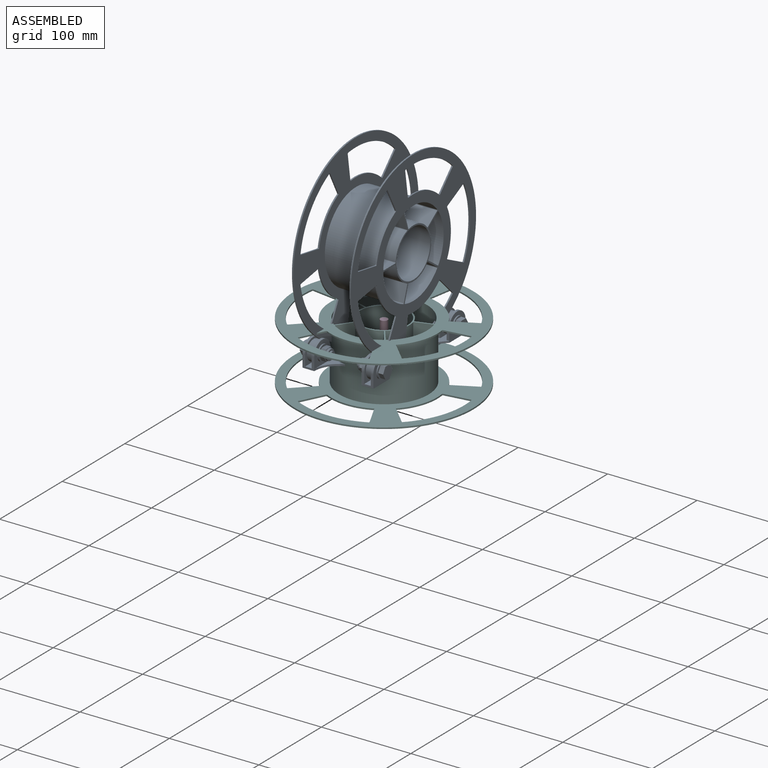
[diagram: assembled view]
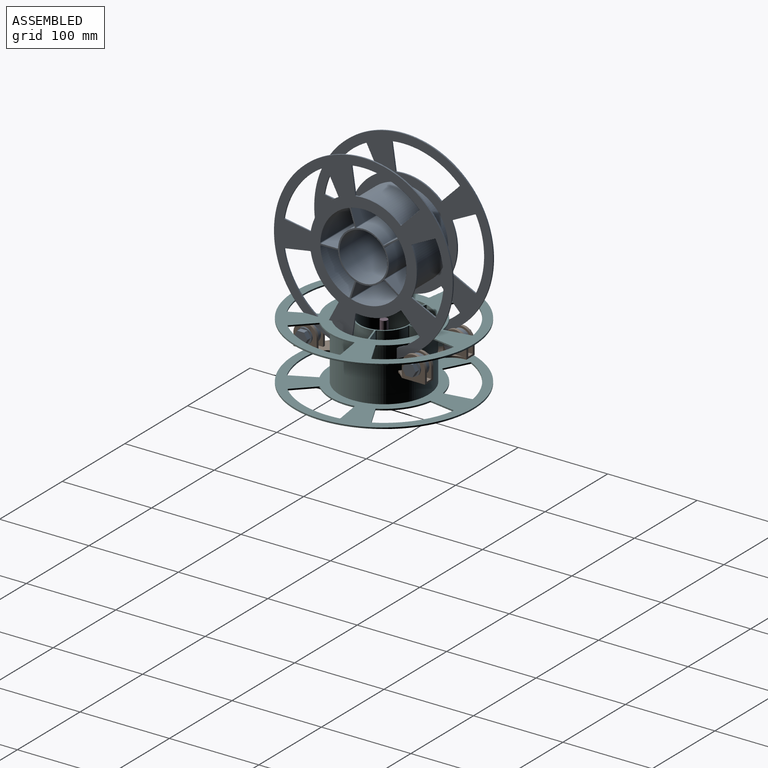
[diagram: assembled view, second angle]
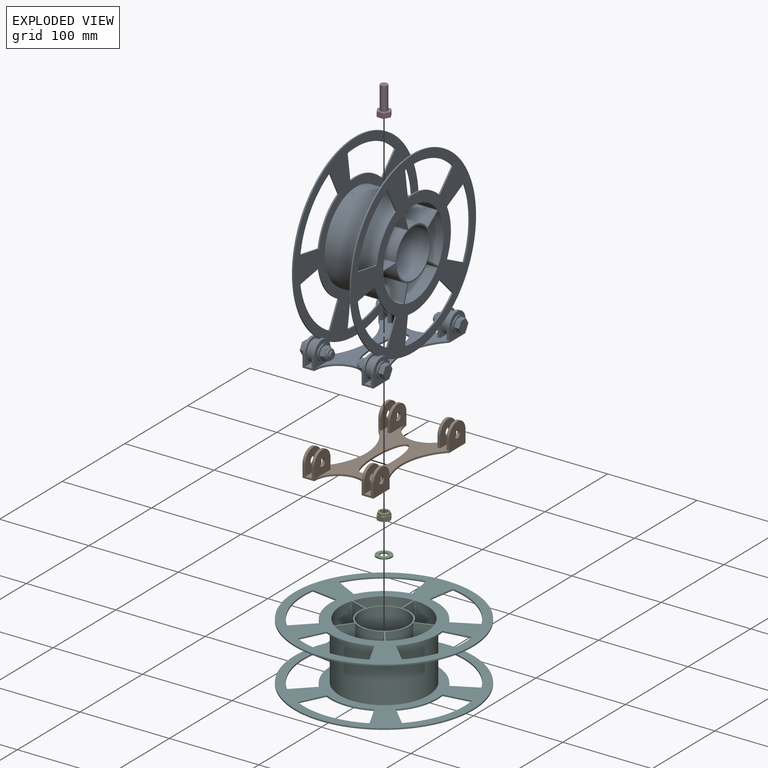
[diagram: exploded view]
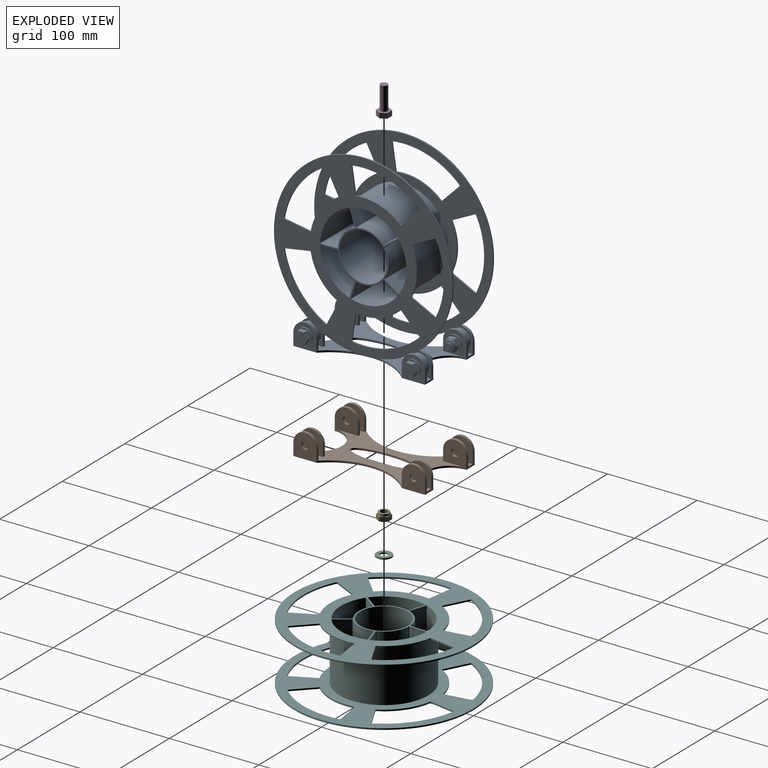
[diagram: exploded view, second angle]
FCSTD DOCUMENT  (FreeCAD 1.0R39285 (Git))
Label: FilamentSpoolRoller
License: All rights reserved
LicenseURL: https://en.wikipedia.org/wiki/All_rights_reserved
objects: App::Link×22, PartDesign::CoordinateSystem×21, Sketcher::SketchObject×13, PartDesign::Pad×5, PartDesign::Body×5, App::DocumentObjectGroup×3, PartDesign::Pocket×3, PartDesign::Groove×2, PartDesign::Revolution×2, Spreadsheet::Sheet×1, App::FeaturePython×1, App::Part×1, PartDesign::PolarPattern×1
note: 90 computed .brp shape members not serialized (recipe doc carries the construction recipe); baked Part::Feature solids carry a one-line shape summary decoded from their .brp
EXTERNAL_REF file=608ZZ_Ball_Bearing.fcstd obj=Center
EXTERNAL_REF file=608ZZ_Ball_Bearing.fcstd obj=Body

FEATURE [Spreadsheet::Sheet] Spreadsheet
  cells = A2=' Spool outer diameter; B2(SpoolOuterDiameter)==200 mm; A3='Spool outer width; B3(SpoolOuterWidth)==65.9 mm; A4='Spool side thickness; B4(SpoolSideThickness)==1.6 mm; A5='Spool center hole diameter; B5(SpoolCenterHoleDiameter)==53.5 mm; A6='Spool inner diameter; B6(SpoolInnerDiameter)==96.3 + 3.2; A7='Spool diameter tolerance; B7(SpoolDiameterTolerance)==5 mm; C7='Vertical distance between the spool and the roller stand; A8='Spool number of cutouts; B8(SpoolNumberOfCutouts)=5; A9='Spool wide parts; B9(SpoolWideParts)==10 mm; A11='Bearing outer diameter; B11(BearingOuterDiameter)==22 mm; A12='Bearing hole diameter; B12(BearingHoleDiameter)==8 mm; A13='Bearing width; B13(BearingWidth)==7 mm; A14='Bearing width tolerance; B14(BearingWidthTolerance)==0.1 mm; A15='Bearing diameter tolerance; B15(BearingDiameterTolerance)==1 mm; A17='Bolt diameter; B17(BoltDiameter)==8 mm; A18='Bolt length; C18(BoltLength)==WasherThickness * 2 + BearingMountThickness * 2 + BearingWidthTolerance * 2 + BearingWidth + LockNutTotalHeight + BoltExtraLength; D18='no edit; E18='(calculated); F18='WasherThickness * 2 + BearingMountThickness * 2 + BearingWidthTolerance * 2 + BearingWidth + BoltExtraLength; A19='Bolt extra length; B19(BoltExtraLength)==2 mm; A20='Bolt diameter tolerance; B20(BoltDiameterTolerance)==0.2 mm; A21='Bolt head size; B21(BoltHeadSize)==13 mm; A22='Bolt head height; B22(BoltHeadHeight)==5.5 mm; A24='Washer thickness; B24(WasherThickness)==1.5 mm; A25='Washer outer diameter; B25(WasherOuterDiameter)==17 mm; A26='Washer inner diameter; B26(WasherInnerDiameter)==8.4 mm; A28='Nut height; B28(NutHeight)==5.5 mm; A29='Nut size; B29(NutSize)==13 mm; A30='Lock nut total height; B30(LockNutTotalHeight)==7.9 mm; A32='Bearing mount thickness; B32(BearingMountThickness)==3 mm; A33='Bearing mount diameter; C33(BearingMountDiameter)==BearingOuterDiameter + BearingMountExtraRadius * 2; D33='no edit; E33='(calculated); F33='BearingOuterDiameter + BearingMountExtraRadius * 2; A34='BearingMountExtraRadius; B34(BearingMountExtraRadius)==2 mm; A36='Roller bottom thickness; B36(RollerBottomThickness)==2 mm; A37='Roller bottom arm width; B37(RollerBottomArmWidth)==10 mm; A38='Roller total width; C38(RollerTotalWidth)==BearingMountThickness * 2 + BearingDiameterTolerance * 2 + BearingWidth + SpoolOuterWidth - SpoolSideThickness; D38='no edit; E38='(calculated); F38='BearingMountThickness * 4 + BearingDiameterTolerance * 4 + BearingWidth * 2 + SpoolOuterWidth - SpoolSideThickness; A39='Roller bottom center hole width; C39(RollerBottomCenterHoleWidth)==RollerBottomArmWidth * 2; D39='no edit; E39='(calculated); F39='RollerBottomArmWidth * 2
FEATURE [PartDesign::CoordinateSystem] LCS_Origin
  AttacherType = Attacher::AttachEngine3D
  AttachmentSupport = -> [X_Axis]
  MapMode = 2
FEATURE [App::DocumentObjectGroup] Constraints
FEATURE [App::FeaturePython] Variables  # WARN: FeaturePython — macro-defined, semantics opaque (R4)
  Type = App::PropertyContainer
FEATURE [App::DocumentObjectGroup] Configurations
FEATURE [Sketcher::SketchObject] Sketch
  ArcFitTolerance = 1e-06
  AttachmentSupport = -> [YZ_Plane001]
  FullyConstrained = true
  MakeInternals = false
  MapMode = 5
  Placement = pos=(0,0,0) rot=(0.57735,0.57735,0.57735;2.0944rad)
  expr: .Constraints.SpoolCenterZ = <<Spreadsheet>>.SpoolOuterDiameter / 2 + <<Spreadsheet>>.SpoolDiameterTolerance + <<Spreadsheet>>.RollerBottomThickness
  expr: Constraints[1] = <<Spreadsheet>>.SpoolOuterDiameter
  expr: Constraints[25] = <<Spreadsheet>>.RollerBottomThickness
  expr: Constraints[26] = <<Spreadsheet>>.BearingMountDiameter
  expr: Constraints[30] = <<Spreadsheet>>.BoltDiameter + <<Spreadsheet>>.BoltDiameterTolerance * 2
  expr: Constraints[5] = Spreadsheet.BearingOuterDiameter
  expr: Constraints[7] = Spreadsheet.BearingOuterDiameter / 2 + Spreadsheet.BearingDiameterTolerance + Spreadsheet.RollerBottomThickness
  sketch-geometry (13):
    g0: Circle [constr] CenterX=0 CenterY=107 CenterZ=0 NormalX=0 NormalY=0 NormalZ=1 AngleXU=0 Radius=100
    g1: Circle [constr] CenterX=-60.597 CenterY=14 CenterZ=0 NormalX=0 NormalY=0 NormalZ=1 AngleXU=0 Radius=11
    g2: Circle [constr] CenterX=60.597 CenterY=14 CenterZ=0 NormalX=0 NormalY=0 NormalZ=1 AngleXU=0 Radius=11
    g3: ArcOfCircle CenterX=-60.597 CenterY=14 CenterZ=0 NormalX=0 NormalY=0 NormalZ=1 AngleXU=0 Radius=13 StartAngle=1e-16 EndAngle=3.14159
    g4: ArcOfCircle CenterX=60.597 CenterY=14 CenterZ=0 NormalX=0 NormalY=0 NormalZ=1 AngleXU=0 Radius=13 StartAngle=1e-16 EndAngle=3.14159
    g5: LineSegment StartX=73.597 StartY=14 StartZ=0 EndX=73.597 EndY=0 EndZ=0
    g6: LineSegment StartX=73.597 StartY=0 StartZ=0 EndX=-73.597 EndY=0 EndZ=0
    g7: LineSegment StartX=-73.597 StartY=0 StartZ=0 EndX=-73.597 EndY=14 EndZ=0
    g8: LineSegment StartX=-47.597 StartY=14 StartZ=0 EndX=-47.597 EndY=2 EndZ=0
    g9: LineSegment StartX=-47.597 StartY=2 StartZ=0 EndX=47.597 EndY=2 EndZ=0
    g10: LineSegment StartX=47.597 StartY=2 StartZ=0 EndX=47.597 EndY=14 EndZ=0
    g11: Circle CenterX=60.597 CenterY=14 CenterZ=0 NormalX=0 NormalY=0 NormalZ=1 AngleXU=0 Radius=4.2
    g12: Circle CenterX=-60.597 CenterY=14 CenterZ=0 NormalX=0 NormalY=0 NormalZ=1 AngleXU=0 Radius=4.2
  constraints (31):
    c: PointOnObject(g0,g-2)
    c: Diameter(g0) = 200
    c: DistanceY(g0) = 107  'SpoolCenterZ'
    c: Symmetric(g2,g1,g-2)
    c: Equal(g2,g1)
    c: Diameter(g2) = 22
    c: Tangent(g2,g0)
    c: DistanceY(g2) = 14
    c: Coincident(g3,g1)
    c: Coincident(g4,g2)
    c: Tangent(g4,g5) = 1.5708
    c: Coincident(g5,g6)
    c: PointOnObject(g6,g-1)
    c: Coincident(g6,g7)
    c: Vertical(g7)
    c: Tangent(g3,g8) = 1.5708
    c: Coincident(g8,g9)
    c: Horizontal(g9)
    c: Coincident(g9,g10)
    c: Tangent(g7,g3) = 1.5708
    c: Tangent(g10,g4) = 1.5708
    c: Vertical(g5)
    c: Vertical(g10)
    c: Vertical(g8)
    c: Symmetric(g6,g5,g-2)
    c: DistanceY(g9) = 2
    c: Diameter(g4) = 26
    c: Coincident(g11,g2)
    c: Coincident(g12,g1)
    c: Equal(g12,g11)
    c: Diameter(g11) = 8.4
FEATURE [PartDesign::Pad] Pad
  Direction = (1,0,0)
  Length = 79.3
  Length2 = 10
  Midplane = true
  Placement = pos=(0,0,0) rot=(1,1,1;2.0944rad)
  Profile = -> Sketch
  ReferenceAxis = -> Sketch [N_Axis]
  Refine = true
  Suppressed = false
  Type = 0
  expr: Length = <<Spreadsheet>>.RollerTotalWidth
FEATURE [Sketcher::SketchObject] Sketch001
  ArcFitTolerance = 1e-06
  AttachmentSupport = -> [Pad]
  ExternalGeometry = -> [Pad]
  FullyConstrained = true
  MakeInternals = false
  MapMode = 5
  Placement = pos=(-1.63e-14,-73.597,8.2e-15) rot=(0.57735,0.57735,-0.57735;2.0944rad)
  expr: Constraints[11] = <<Spreadsheet>>.RollerBottomThickness
  expr: Constraints[31] = <<Spreadsheet>>.BearingMountThickness
  expr: Constraints[34] = <<Spreadsheet>>.BearingWidth + Spreadsheet.BearingWidthTolerance * 2
  expr: Constraints[35] = Spreadsheet.BearingMountThickness
  sketch-geometry (13):
    g0: LineSegment StartX=-2 StartY=-26.45 StartZ=0 EndX=-2 EndY=26.45 EndZ=0
    g1: LineSegment StartX=-2 StartY=26.45 StartZ=0 EndX=-27 EndY=26.45 EndZ=0
    g2: LineSegment StartX=-27 StartY=26.45 StartZ=0 EndX=-27 EndY=-26.45 EndZ=0
    g3: LineSegment StartX=-27 StartY=-26.45 StartZ=0 EndX=-2 EndY=-26.45 EndZ=0
    g4: GeomPoint [constr] X=-14.5 Y=0 Z=0
    g5: LineSegment StartX=-27 StartY=36.65 StartZ=0 EndX=-27 EndY=29.45 EndZ=0
    g6: LineSegment StartX=-27 StartY=29.45 StartZ=0 EndX=-2 EndY=29.45 EndZ=0
    g7: LineSegment StartX=-2 StartY=29.45 StartZ=0 EndX=-2 EndY=36.65 EndZ=0
    g8: LineSegment StartX=-2 StartY=36.65 StartZ=0 EndX=-27 EndY=36.65 EndZ=0
    g9: LineSegment StartX=-27 StartY=-29.45 StartZ=0 EndX=-27 EndY=-36.65 EndZ=0
    g10: LineSegment StartX=-27 StartY=-36.65 StartZ=0 EndX=-2 EndY=-36.65 EndZ=0
    g11: LineSegment StartX=-2 StartY=-36.65 StartZ=0 EndX=-2 EndY=-29.45 EndZ=0
    g12: LineSegment StartX=-2 StartY=-29.45 StartZ=0 EndX=-27 EndY=-29.45 EndZ=0
  constraints (36):
    c: Coincident(g0,g1)
    c: Coincident(g1,g2)
    c: Coincident(g2,g3)
    c: Coincident(g3,g0)
    c: Vertical(g0)
    c: Vertical(g2)
    c: Horizontal(g1)
    c: Horizontal(g3)
    c: Symmetric(g2,g0,g4)
    c: PointOnObject(g4,g-1)
    c: Vertical(g1,g-3)
    c: DistanceX(g0,g-1) = 2
    c: Coincident(g5,g6)
    c: Coincident(g6,g7)
    c: Coincident(g7,g8)
    c: Coincident(g8,g5)
    c: Vertical(g5)
    c: Vertical(g7)
    c: Horizontal(g6)
    c: Horizontal(g8)
    c: Coincident(g9,g10)
    c: Coincident(g10,g11)
    c: Coincident(g11,g12)
    c: Coincident(g12,g9)
    c: Vertical(g9)
    c: Vertical(g11)
    c: Horizontal(g10)
    c: Horizontal(g12)
    c: Vertical(g6,g0)
    c: Vertical(g0,g11)
    c: Vertical(g9,g2)
    c: DistanceY(g5,g-3) = 3
    c: Equal(g5,g9)
    c: Symmetric(g9,g5,g-1)
    c: DistanceY(g7,g7) = 7.2
    c: DistanceY(g1,g5) = 3
FEATURE [PartDesign::Pocket] Pocket
  BaseFeature = -> Pad
  Direction = (0,1,0)
  Length = 5
  Length2 = 5
  Placement = pos=(0,0,0) rot=(1,1,1;2.0944rad)
  Profile = -> Sketch001
  ReferenceAxis = -> Sketch001 [N_Axis]
  Refine = true
  Suppressed = false
  Type = 1
FEATURE [Sketcher::SketchObject] Sketch002
  ArcFitTolerance = 1e-06
  AttachmentSupport = -> [Pocket]
  ExternalGeometry = -> [Pocket]
  FullyConstrained = true
  MakeInternals = false
  MapMode = 5
  Placement = pos=(-2e-16,8e-16,2) rot=(0,0,-1;1.5708rad)
  expr: Constraints[23] = Spreadsheet.RollerBottomArmWidth
  expr: Constraints[25] = <<Spreadsheet>>.RollerBottomArmWidth
  expr: Constraints[27] = Spreadsheet.RollerBottomCenterHoleWidth
  sketch-geometry (13):
    g0: LineSegment StartX=-73.597 StartY=26.45 StartZ=0 EndX=-73.597 EndY=-26.45 EndZ=0
    g1: LineSegment StartX=-47.597 StartY=-39.65 StartZ=0 EndX=47.597 EndY=-39.65 EndZ=0
    g2: LineSegment StartX=73.597 StartY=-26.45 StartZ=0 EndX=73.597 EndY=26.45 EndZ=0
    g3: LineSegment StartX=47.597 StartY=39.65 StartZ=0 EndX=-47.597 EndY=39.65 EndZ=0
    g4: ArcOfCircle CenterX=-73.597 CenterY=-3.7e-15 CenterZ=0 NormalX=0 NormalY=0 NormalZ=1 AngleXU=0 Radius=26.45 StartAngle=4.71239 EndAngle=7.85398
    g5: ArcOfCircle CenterX=3.33e-14 CenterY=87.4707 CenterZ=0 NormalX=0 NormalY=0 NormalZ=1 AngleXU=0 Radius=67.4707 StartAngle=3.92934 EndAngle=5.49544
    g6: ArcOfCircle CenterX=73.597 CenterY=-3.52e-14 CenterZ=0 NormalX=0 NormalY=0 NormalZ=1 AngleXU=0 Radius=26.45 StartAngle=1.5708 EndAngle=4.71239
    g7: ArcOfCircle CenterX=-1.81e-14 CenterY=-87.4707 CenterZ=0 NormalX=0 NormalY=0 NormalZ=1 AngleXU=0 Radius=67.4707 StartAngle=0.787743 EndAngle=2.35385
    g8: Ellipse CenterX=0 CenterY=0 CenterZ=0 NormalX=0 NormalY=0 NormalZ=1 MajorRadius=37.147 MinorRadius=10 AngleXU=0
    g9: LineSegment [constr] StartX=37.147 StartY=0 StartZ=0 EndX=-37.147 EndY=0 EndZ=0
    g10: LineSegment [constr] StartX=0 StartY=10 StartZ=0 EndX=0 EndY=-10 EndZ=0
    g11: GeomPoint [constr] X=35.7757 Y=0 Z=0
    g12: GeomPoint [constr] X=-35.7757 Y=0 Z=0
  constraints (25):
    c: Coincident(g0,g-3)
    c: Coincident(g0,g-3)
    c: Coincident(g1,g-6)
    c: Coincident(g1,g-6)
    c: Coincident(g2,g-5)
    c: Coincident(g2,g-5)
    c: Coincident(g3,g-4)
    c: Coincident(g3,g-4)
    c: Coincident(g4,g0)
    c: Coincident(g4,g0)
    c: Coincident(g5,g3)
    c: Coincident(g5,g3)
    c: Coincident(g6,g2)
    c: Coincident(g6,g2)
    c: Coincident(g7,g1)
    c: Coincident(g7,g1)
    c: Equal(g5,g7)
    c: Equal(g6,g4)
    c: InternalAlignment(g9-g12 -> g8) x4
    c: Coincident(g8,g-1)
    c: Distance(g10,g5) = 10
    c: PointOnObject(g9,g-1)
    c: Distance(g9,g4) = 10
    c: Perpendicular(g4,g0)
    c: DistanceY(g10,g10) = 20
FEATURE [PartDesign::Pocket] Pocket001
  BaseFeature = -> Pocket
  Direction = (0,0,-1)
  Length = 5
  Length2 = 5
  Placement = pos=(0,0,0) rot=(1,1,1;2.0944rad)
  Profile = -> Sketch002
  ReferenceAxis = -> Sketch002 [N_Axis]
  Refine = true
  Suppressed = false
  Type = 1
FEATURE [PartDesign::CoordinateSystem] BottomCenter
  AttacherType = Attacher::AttachEngine3D
  AttachmentSupport = -> [Pocket001]
  MapMode = 45
  Placement = pos=(2.51276e-11,6.43291e-10,0) rot=(0,0,1;0rad)
FEATURE [PartDesign::CoordinateSystem] Bearing1
  AttacherType = Attacher::AttachEngine3D
  AttachmentSupport = -> [Pocket001]
  MapMode = 45
  Placement = pos=(-33.05,60.597,14) rot=(-0.577349,-0.577349,-0.577352;2.09439rad)
FEATURE [PartDesign::CoordinateSystem] Bearing2
  AttacherType = Attacher::AttachEngine3D
  AttachmentSupport = -> [Pocket001]
  MapMode = 45
  Placement = pos=(33.05,60.597,14) rot=(0.57735,0.57735,0.57735;4.18879rad)
FEATURE [PartDesign::CoordinateSystem] Bearing3
  AttacherType = Attacher::AttachEngine3D
  AttachmentSupport = -> [Pocket001]
  MapMode = 45
  Placement = pos=(-33.05,-60.597,14) rot=(0.57735,0.57735,0.57735;4.18879rad)
FEATURE [PartDesign::CoordinateSystem] Bearing4
  AttacherType = Attacher::AttachEngine3D
  AttachmentSupport = -> [Pocket001]
  MapMode = 45
  Placement = pos=(33.05,-60.597,14) rot=(0.57735,0.57735,0.57735;4.18879rad)
FEATURE [App::Link] Roller  label="Roller001"
  AttachedBy = #BottomCenter
  AttachedTo = Parent Assembly#LCS_Origin
  LinkPlacement = pos=(-2.51276e-11,-6.43291e-10,0) rot=(0,0,1;0rad)
  LinkedObject = -> Body
  Placement = pos=(-2.51276e-11,-6.43291e-10,0) rot=(0,0,1;0rad)
  SolverId = Asm4EE
  expr: Placement = LCS_Origin.Placement * AttachmentOffset * BottomCenter.Placement ^ -1
FEATURE [App::Link] _08ZZ_Ball_Bearing  label="608ZZ-Ball_Bearing"
  AttachedBy = #Center
  AttachedTo = Roller#Bearing1
  AttachmentOffset = pos=(0,0,0) rot=(1,0,0;1.5708rad)
  LinkPlacement = pos=(-33.05,60.597,14) rot=(2e-06,-1,-2e-06;1.5708rad)
  LinkedObject = -> <external 608ZZ_Ball_Bearing.fcstd>#Body
  Placement = pos=(-33.05,60.597,14) rot=(2e-06,-1,-2e-06;1.5708rad)
  SolverId = Asm4EE
  expr: Placement = Roller.Placement * Bearing1.Placement * AttachmentOffset * _08ZZ_Ball_Bearing#Center.Placement ^ -1
FEATURE [App::Link] _08ZZ_Ball_Bearing001  label="608ZZ-Ball_Bearing001"
  AttachedBy = #Center
  AttachedTo = Roller#Bearing2
  AttachmentOffset = pos=(0,0,0) rot=(1,0,0;1.5708rad)
  LinkPlacement = pos=(33.05,60.597,14) rot=(0,1,0;4.71239rad)
  LinkedObject = -> <external 608ZZ_Ball_Bearing.fcstd>#Body
  Placement = pos=(33.05,60.597,14) rot=(0,1,0;4.71239rad)
  SolverId = Asm4EE
  expr: Placement = Roller.Placement * Bearing2.Placement * AttachmentOffset * _08ZZ_Ball_Bearing#Center.Placement ^ -1
FEATURE [App::Link] _08ZZ_Ball_Bearing002  label="608ZZ-Ball_Bearing002"
  AttachedBy = #Center
  AttachedTo = Roller#Bearing3
  AttachmentOffset = pos=(0,0,0) rot=(1,0,0;1.5708rad)
  LinkPlacement = pos=(-33.05,-60.597,14) rot=(0,1,0;4.71239rad)
  LinkedObject = -> <external 608ZZ_Ball_Bearing.fcstd>#Body
  Placement = pos=(-33.05,-60.597,14) rot=(0,1,0;4.71239rad)
  SolverId = Asm4EE
  expr: Placement = Roller.Placement * Bearing3.Placement * AttachmentOffset * _08ZZ_Ball_Bearing#Center.Placement ^ -1
FEATURE [App::Link] _08ZZ_Ball_Bearing003  label="608ZZ-Ball_Bearing003"
  AttachedBy = #Center
  AttachedTo = Roller#Bearing4
  AttachmentOffset = pos=(0,0,0) rot=(1,0,0;1.5708rad)
  LinkPlacement = pos=(33.05,-60.597,14) rot=(0,1,0;4.71239rad)
  LinkedObject = -> <external 608ZZ_Ball_Bearing.fcstd>#Body
  Placement = pos=(33.05,-60.597,14) rot=(0,1,0;4.71239rad)
  SolverId = Asm4EE
  expr: Placement = Roller.Placement * Bearing4.Placement * AttachmentOffset * _08ZZ_Ball_Bearing#Center.Placement ^ -1
FEATURE [PartDesign::CoordinateSystem] Washer1  label="Washer1a"
  AttacherType = Attacher::AttachEngine3D
  AttachmentSupport = -> [Pocket001]
  MapMode = 11
  Placement = pos=(-39.65,60.597,14) rot=(0.707107,0,0.707107;3.14159rad)
FEATURE [PartDesign::CoordinateSystem] Washer2  label="Washer1b"
  AttacherType = Attacher::AttachEngine3D
  AttachmentSupport = -> [Pocket001]
  MapMode = 11
  Placement = pos=(-26.45,60.597,14) rot=(0.707107,0,-0.707107;3.14159rad)
FEATURE [PartDesign::CoordinateSystem] Washer3  label="Washer2a"
  AttacherType = Attacher::AttachEngine3D
  AttachmentSupport = -> [Pocket001]
  MapMode = 11
  Placement = pos=(26.45,60.597,14) rot=(0.707107,0,-0.707107;3.14159rad)
FEATURE [PartDesign::CoordinateSystem] Washer4  label="Washer2b"
  AttacherType = Attacher::AttachEngine3D
  AttachmentSupport = -> [Pocket001]
  MapMode = 11
  Placement = pos=(39.65,60.597,14) rot=(0.707107,0,0.707107;3.14159rad)
FEATURE [PartDesign::CoordinateSystem] Washer3a
  AttacherType = Attacher::AttachEngine3D
  AttachmentSupport = -> [Pocket001]
  MapMode = 11
  Placement = pos=(39.65,-60.597,14) rot=(0.707107,0,0.707107;3.14159rad)
FEATURE [PartDesign::CoordinateSystem] Washer3b
  AttacherType = Attacher::AttachEngine3D
  AttachmentSupport = -> [Pocket001]
  MapMode = 11
  Placement = pos=(26.45,-60.597,14) rot=(0.707107,0,-0.707107;3.14159rad)
FEATURE [PartDesign::CoordinateSystem] Washer4a
  AttacherType = Attacher::AttachEngine3D
  AttachmentSupport = -> [Pocket001]
  MapMode = 11
  Placement = pos=(-26.45,-60.597,14) rot=(0.707107,0,-0.707107;3.14159rad)
FEATURE [PartDesign::CoordinateSystem] Washer4b
  AttacherType = Attacher::AttachEngine3D
  AttachmentSupport = -> [Pocket001]
  MapMode = 11
  Placement = pos=(-39.65,-60.597,14) rot=(0.707107,0,0.707107;3.14159rad)
FEATURE [Sketcher::SketchObject] Sketch004
  ArcFitTolerance = 1e-06
  AttachmentSupport = -> [XY_Plane003]
  FullyConstrained = true
  MakeInternals = false
  MapMode = 5
  expr: Constraints[19] = <<Spreadsheet>>.BoltHeadSize
  sketch-geometry (7):
    g0: LineSegment StartX=7.50555 StartY=0 StartZ=0 EndX=3.75278 EndY=6.5 EndZ=0
    g1: LineSegment StartX=3.75278 StartY=6.5 StartZ=0 EndX=-3.75278 EndY=6.5 EndZ=0
    g2: LineSegment StartX=-3.75278 StartY=6.5 StartZ=0 EndX=-7.50555 EndY=9e-16 EndZ=0
    g3: LineSegment StartX=-7.50555 StartY=9e-16 StartZ=0 EndX=-3.75278 EndY=-6.5 EndZ=0
    g4: LineSegment StartX=-3.75278 StartY=-6.5 StartZ=0 EndX=3.75278 EndY=-6.5 EndZ=0
    g5: LineSegment StartX=3.75278 StartY=-6.5 StartZ=0 EndX=7.50555 EndY=0 EndZ=0
    g6: Circle [constr] CenterX=0 CenterY=0 CenterZ=0 NormalX=0 NormalY=0 NormalZ=1 AngleXU=0 Radius=7.50555
  constraints (16):
    c: Coincident(g0,g1)
    c: Coincident(g1,g2)
    c: Coincident(g2,g3)
    c: Coincident(g3,g4)
    c: Coincident(g4,g5)
    c: Coincident(g5,g0)
    c: Equal(g0, g1-g5) x5
    c: PointOnObject(g0,g6)
    c: PointOnObject(g1,g6)
    c: PointOnObject(g2,g6)
    c: PointOnObject(g3,g6)
    c: PointOnObject(g4,g6)
    c: PointOnObject(g5,g6)
    c: Coincident(g6,g-1)
    c: PointOnObject(g5,g-1)
    c: DistanceY(g3,g1) = 13
FEATURE [PartDesign::Pad] Pad002
  Direction = (0,0,1)
  Length = 5.5
  Length2 = 10
  Profile = -> Sketch004
  ReferenceAxis = -> Sketch004 [N_Axis]
  Refine = true
  Suppressed = false
  Type = 0
  expr: Length = <<Spreadsheet>>.BoltHeadHeight
FEATURE [Sketcher::SketchObject] Sketch005
  ArcFitTolerance = 1e-06
  AttachmentSupport = -> [Pad002]
  FullyConstrained = true
  MakeInternals = false
  MapMode = 5
  Placement = pos=(0,0,5.5) rot=(0,0,1;0rad)
  expr: Constraints[1] = <<Spreadsheet>>.BoltDiameter
  sketch-geometry (1):
    g0: Circle CenterX=0 CenterY=0 CenterZ=0 NormalX=0 NormalY=0 NormalZ=1 AngleXU=0 Radius=4
  constraints (2):
    c: Coincident(g0,g-1)
    c: Diameter(g0) = 8
FEATURE [PartDesign::Pad] Pad003
  BaseFeature = -> Pad002
  Direction = (0,0,1)
  Length = 26.1
  Length2 = 10
  Profile = -> Sketch005
  ReferenceAxis = -> Sketch005 [N_Axis]
  Refine = true
  Suppressed = false
  Type = 0
  expr: Length = <<Spreadsheet>>.BoltLength
FEATURE [Sketcher::SketchObject] Sketch006
  ArcFitTolerance = 1e-06
  AttachmentSupport = -> [XZ_Plane003]
  ExternalGeometry = -> [Pad003]
  FullyConstrained = true
  MakeInternals = false
  MapMode = 5
  Placement = pos=(0,0,0) rot=(1,0,0;1.5708rad)
  sketch-geometry (9):
    g0: LineSegment StartX=4 StartY=31.6 StartZ=0 EndX=4.5 EndY=31.6 EndZ=0
    g1: LineSegment StartX=4.5 StartY=31.6 StartZ=0 EndX=4 EndY=31.1 EndZ=0
    g2: LineSegment StartX=4 StartY=31.1 StartZ=0 EndX=4 EndY=31.6 EndZ=0
    g3: LineSegment StartX=7.50555 StartY=0 StartZ=0 EndX=6.30555 EndY=0 EndZ=0
    g4: LineSegment StartX=6.30555 StartY=0 StartZ=0 EndX=7.50555 EndY=-0.5 EndZ=0
    g5: LineSegment StartX=7.50555 StartY=-0.5 StartZ=0 EndX=7.50555 EndY=0 EndZ=0
    g6: LineSegment StartX=7.50555 StartY=5.5 StartZ=0 EndX=6.30555 EndY=5.5 EndZ=0
    g7: LineSegment StartX=6.30555 StartY=5.5 StartZ=0 EndX=7.50555 EndY=6 EndZ=0
    g8: LineSegment StartX=7.50555 StartY=6 StartZ=0 EndX=7.50555 EndY=5.5 EndZ=0
  constraints (24):
    c: Coincident(g-3,g0)
    c: PointOnObject(g0,g-3)
    c: Coincident(g0,g1)
    c: Coincident(g1,g2)
    c: Coincident(g2,g0)
    c: Coincident(g-4,g3)
    c: PointOnObject(g3,g-1)
    c: Coincident(g3,g4)
    c: PointOnObject(g4,g-4)
    c: Coincident(g4,g5)
    c: Coincident(g5,g3)
    c: Vertical(g2)
    c: Equal(g2,g0)
    c: DistanceY(g2,g2) = 0.5
    c: Equal(g2,g5)
    c: DistanceX(g3,g3) = 1.2
    c: Coincident(g-4,g6)
    c: Horizontal(g6)
    c: Coincident(g6,g7)
    c: PointOnObject(g7,g-4)
    c: Coincident(g7,g8)
    c: Coincident(g8,g6)
    c: Equal(g5,g8)
    c: Equal(g3,g6)
FEATURE [PartDesign::Groove] Groove
  Angle = 360
  Angle2 = 60
  Axis = (0,2e-16,1)
  Base = (0,0,0)
  BaseFeature = -> Pad003
  Profile = -> Sketch006
  ReferenceAxis = -> Sketch006 [V_Axis]
  Refine = true
  Suppressed = false
  Type = 0
FEATURE [PartDesign::CoordinateSystem] MountFace
  AttacherType = Attacher::AttachEngine3D
  AttachmentSupport = -> [Groove]
  MapMode = 11
  Placement = pos=(0,0,5.5) rot=(0,0,1;1.5708rad)
FEATURE [PartDesign::Body] Body002  label="Bolt"
  AllowCompound = false
  Group = -> [Sketch004,Pad002,Sketch005,Pad003,Sketch006,Groove,MountFace]
  Origin = -> Origin003
  Tip = -> Groove
FEATURE [Sketcher::SketchObject] Sketch007
  ArcFitTolerance = 1e-06
  AttachmentSupport = -> [XY_Plane004]
  FullyConstrained = true
  MakeInternals = false
  MapMode = 5
  expr: Constraints[19] = <<Spreadsheet>>.NutSize
  expr: Constraints[21] = <<Spreadsheet>>.BoltDiameter
  sketch-geometry (8):
    g0: LineSegment StartX=7.50555 StartY=0 StartZ=0 EndX=3.75278 EndY=6.5 EndZ=0
    g1: LineSegment StartX=3.75278 StartY=6.5 StartZ=0 EndX=-3.75278 EndY=6.5 EndZ=0
    g2: LineSegment StartX=-3.75278 StartY=6.5 StartZ=0 EndX=-7.50555 EndY=0 EndZ=0
    g3: LineSegment StartX=-7.50555 StartY=0 StartZ=0 EndX=-3.75278 EndY=-6.5 EndZ=0
    g4: LineSegment StartX=-3.75278 StartY=-6.5 StartZ=0 EndX=3.75278 EndY=-6.5 EndZ=0
    g5: LineSegment StartX=3.75278 StartY=-6.5 StartZ=0 EndX=7.50555 EndY=0 EndZ=0
    g6: Circle [constr] CenterX=0 CenterY=0 CenterZ=0 NormalX=0 NormalY=0 NormalZ=1 AngleXU=0 Radius=7.50555
    g7: Circle CenterX=0 CenterY=0 CenterZ=0 NormalX=0 NormalY=0 NormalZ=1 AngleXU=0 Radius=4
  constraints (18):
    c: Coincident(g0,g1)
    c: Coincident(g1,g2)
    c: Coincident(g2,g3)
    c: Coincident(g3,g4)
    c: Coincident(g4,g5)
    c: Coincident(g5,g0)
    c: Equal(g0, g1-g5) x5
    c: PointOnObject(g0,g6)
    c: PointOnObject(g1,g6)
    c: PointOnObject(g2,g6)
    c: PointOnObject(g3,g6)
    c: PointOnObject(g4,g6)
    c: PointOnObject(g5,g6)
    c: Coincident(g6,g-1)
    c: PointOnObject(g5,g-1)
    c: DistanceY(g3,g1) = 13
    c: Coincident(g7,g6)
    c: Diameter(g7) = 8
FEATURE [PartDesign::Pad] Pad004
  Direction = (0,0,1)
  Length = 5.5
  Length2 = 10
  Profile = -> Sketch007
  ReferenceAxis = -> Sketch007 [N_Axis]
  Refine = true
  Suppressed = false
  Type = 0
  expr: Length = <<Spreadsheet>>.NutHeight
FEATURE [Sketcher::SketchObject] Sketch008
  ArcFitTolerance = 1e-06
  AttachmentSupport = -> [XZ_Plane004]
  ExternalGeometry = -> [Pad004]
  FullyConstrained = true
  MakeInternals = false
  MapMode = 5
  Placement = pos=(0,0,0) rot=(1,0,0;1.5708rad)
  expr: Constraints[13] = <<Spreadsheet>>.LockNutTotalHeight
  expr: Constraints[14] = <<Spreadsheet>>.BoltDiameter / 2 + 2 mm
  expr: Constraints[8] = Spreadsheet.BoltDiameter / 2
  sketch-geometry (6):
    g0: LineSegment StartX=4 StartY=5.5 StartZ=0 EndX=6 EndY=5.5 EndZ=0
    g1: LineSegment StartX=6 StartY=5.5 StartZ=0 EndX=6 EndY=7.4 EndZ=0
    g2: LineSegment StartX=5.5 StartY=7.9 StartZ=0 EndX=4 EndY=7.9 EndZ=0
    g3: LineSegment StartX=4 StartY=7.9 StartZ=0 EndX=4 EndY=5.5 EndZ=0
    g4: ArcOfCircle CenterX=5.5 CenterY=7.4 CenterZ=0 NormalX=0 NormalY=0 NormalZ=1 AngleXU=0 Radius=0.5 StartAngle=7.003e-13 EndAngle=1.5708
    g5: GeomPoint [constr] X=6 Y=7.9 Z=0
  constraints (16):
    c: Horizontal(g0)
    c: Coincident(g0,g1)
    c: Vertical(g1)
    c: Horizontal(g2)
    c: Coincident(g2,g3)
    c: Coincident(g3,g0)
    c: Vertical(g3)
    c: PointOnObject(g0,g-3)
    c: DistanceX(g-1,g0) = 4
    c: PointOnObject(g5,g1)
    c: PointOnObject(g5,g2)
    c: Tangent(g1,g4) = -1.5708
    c: Tangent(g2,g4) = -1.5708
    c: DistanceY(g2) = 7.9
    c: DistanceX(g0) = 6
    c: Radius(g4) = 0.5
FEATURE [PartDesign::Revolution] Revolution
  Angle = 360
  Angle2 = 60
  Axis = (0,2e-16,1)
  Base = (0,0,0)
  BaseFeature = -> Pad004
  Profile = -> Sketch008
  ReferenceAxis = -> Sketch008 [V_Axis]
  Refine = true
  Reversed = true
  Suppressed = false
  Type = 0
FEATURE [Sketcher::SketchObject] Sketch009
  ArcFitTolerance = 1e-06
  AttachmentSupport = -> [XZ_Plane004]
  ExternalGeometry = -> [Revolution]
  FullyConstrained = true
  MakeInternals = false
  MapMode = 5
  Placement = pos=(0,0,0) rot=(1,0,0;1.5708rad)
  sketch-geometry (6):
    g0: LineSegment StartX=7.50555 StartY=5.5 StartZ=0 EndX=6.30555 EndY=5.5 EndZ=0
    g1: LineSegment StartX=6.30555 StartY=5.5 StartZ=0 EndX=7.50555 EndY=5 EndZ=0
    g2: LineSegment StartX=7.50555 StartY=5 StartZ=0 EndX=7.50555 EndY=5.5 EndZ=0
    g3: LineSegment StartX=7.50555 StartY=0 StartZ=0 EndX=6.30555 EndY=0 EndZ=0
    g4: LineSegment StartX=6.30555 StartY=0 StartZ=0 EndX=7.50555 EndY=0.5 EndZ=0
    g5: LineSegment StartX=7.50555 StartY=0.5 StartZ=0 EndX=7.50555 EndY=0 EndZ=0
  constraints (16):
    c: Coincident(g-3,g0)
    c: Horizontal(g0)
    c: Coincident(g0,g1)
    c: PointOnObject(g1,g-3)
    c: Coincident(g1,g2)
    c: Coincident(g2,g0)
    c: Coincident(g-3,g3)
    c: PointOnObject(g3,g-1)
    c: Coincident(g3,g4)
    c: PointOnObject(g4,g-3)
    c: Coincident(g4,g5)
    c: Coincident(g5,g3)
    c: Equal(g5,g2)
    c: Equal(g3,g0)
    c: DistanceY(g2,g2) = 0.5
    c: DistanceX(g0,g0) = 1.2
FEATURE [PartDesign::Groove] Groove001
  Angle = 360
  Angle2 = 60
  Axis = (0,2e-16,1)
  Base = (0,0,0)
  BaseFeature = -> Revolution
  Profile = -> Sketch009
  ReferenceAxis = -> Sketch009 [V_Axis]
  Refine = true
  Suppressed = false
  Type = 0
FEATURE [PartDesign::CoordinateSystem] MountFace001
  AttacherType = Attacher::AttachEngine3D
  AttachmentSupport = -> [Groove001]
  MapMode = 11
  Placement = pos=(0,0,0) rot=(0,0,1;1.5708rad)
FEATURE [App::Link] Washer  label="Washer001"
  AttachedBy = #Side1
  AttachedTo = Roller#Washer1
  LinkPlacement = pos=(-41.15,60.597,14) rot=(0.57735,0.57735,0.57735;2.0944rad)
  LinkedObject = -> Body001
  Placement = pos=(-41.15,60.597,14) rot=(0.57735,0.57735,0.57735;2.0944rad)
  SolverId = Asm4EE
  expr: Placement = Roller.Placement * Washer1.Placement * AttachmentOffset * Side1.Placement ^ -1
FEATURE [App::Link] Washer005
  AttachedBy = #Side1
  AttachedTo = Roller#Washer2
  LinkPlacement = pos=(-24.95,60.597,14) rot=(0.57735,0.57735,-0.57735;4.18879rad)
  LinkedObject = -> Body001
  Placement = pos=(-24.95,60.597,14) rot=(0.57735,0.57735,-0.57735;4.18879rad)
  SolverId = Asm4EE
  expr: Placement = Roller.Placement * Washer2.Placement * AttachmentOffset * Side1.Placement ^ -1
FEATURE [App::Link] Washer006
  AttachedBy = #Side1
  AttachedTo = Roller#Washer3
  AttachmentOffset = pos=(0,0,0) rot=(1,0,0;3.14159rad)
  LinkPlacement = pos=(24.95,60.597,14) rot=(0.57735,-0.57735,0.57735;4.18879rad)
  LinkedObject = -> Body001
  Placement = pos=(24.95,60.597,14) rot=(0.57735,-0.57735,0.57735;4.18879rad)
  SolverId = Asm4EE
  expr: Placement = Roller.Placement * Washer3.Placement * AttachmentOffset * Side1.Placement ^ -1
FEATURE [App::Link] Washer007
  AttachedBy = #Side1
  AttachedTo = Roller#Washer4
  AttachmentOffset = pos=(0,0,0) rot=(1,0,0;3.14159rad)
  LinkPlacement = pos=(41.15,60.597,14) rot=(-0.57735,0.57735,0.57735;4.18879rad)
  LinkedObject = -> Body001
  Placement = pos=(41.15,60.597,14) rot=(-0.57735,0.57735,0.57735;4.18879rad)
  SolverId = Asm4EE
  expr: Placement = Roller.Placement * Washer4.Placement * AttachmentOffset * Side1.Placement ^ -1
FEATURE [App::Link] Washer008
  AttachedBy = #Side1
  AttachedTo = Roller#Washer3a
  AttachmentOffset = pos=(0,0,0) rot=(1,0,0;3.14159rad)
  LinkPlacement = pos=(41.15,-60.597,14) rot=(-0.57735,0.57735,0.57735;4.18879rad)
  LinkedObject = -> Body001
  Placement = pos=(41.15,-60.597,14) rot=(-0.57735,0.57735,0.57735;4.18879rad)
  SolverId = Asm4EE
  expr: Placement = Roller.Placement * Washer3a.Placement * AttachmentOffset * Side1.Placement ^ -1
FEATURE [App::Link] Washer009
  AttachedBy = #Side1
  AttachedTo = Roller#Washer3b
  AttachmentOffset = pos=(0,0,0) rot=(1,0,0;3.14159rad)
  LinkPlacement = pos=(24.95,-60.597,14) rot=(0.57735,-0.57735,0.57735;4.18879rad)
  LinkedObject = -> Body001
  Placement = pos=(24.95,-60.597,14) rot=(0.57735,-0.57735,0.57735;4.18879rad)
  SolverId = Asm4EE
  expr: Placement = Roller.Placement * Washer3b.Placement * AttachmentOffset * Side1.Placement ^ -1
FEATURE [App::Link] Washer010
  AttachedBy = #Side1
  AttachedTo = Roller#Washer4a
  LinkPlacement = pos=(-24.95,-60.597,14) rot=(0.57735,0.57735,-0.57735;4.18879rad)
  LinkedObject = -> Body001
  Placement = pos=(-24.95,-60.597,14) rot=(0.57735,0.57735,-0.57735;4.18879rad)
  SolverId = Asm4EE
  expr: Placement = Roller.Placement * Washer4a.Placement * AttachmentOffset * Side1.Placement ^ -1
FEATURE [App::Link] Washer011
  AttachedBy = #Side1
  AttachedTo = Roller#Washer4b
  LinkPlacement = pos=(-41.15,-60.597,14) rot=(0.57735,0.57735,0.57735;2.0944rad)
  LinkedObject = -> Body001
  Placement = pos=(-41.15,-60.597,14) rot=(0.57735,0.57735,0.57735;2.0944rad)
  SolverId = Asm4EE
  expr: Placement = Roller.Placement * Washer4b.Placement * AttachmentOffset * Side1.Placement ^ -1
FEATURE [App::Link] Bolt  label="Bolt001"
  AttachedBy = #MountFace
  AttachedTo = Washer#Side2
  LinkPlacement = pos=(-46.65,60.597,14) rot=(0.57735,0.57735,0.57735;2.0944rad)
  LinkedObject = -> Body002
  Placement = pos=(-46.65,60.597,14) rot=(0.57735,0.57735,0.57735;2.0944rad)
  SolverId = Asm4EE
  expr: Placement = Washer.Placement * Side2.Placement * AttachmentOffset * MountFace.Placement ^ -1
FEATURE [App::Link] Bolt001  label="Bolt002"
  AttachedBy = #MountFace
  AttachedTo = Washer007#Side2
  LinkPlacement = pos=(46.65,60.597,14) rot=(-0.57735,0.57735,0.57735;4.18879rad)
  LinkedObject = -> Body002
  Placement = pos=(46.65,60.597,14) rot=(-0.57735,0.57735,0.57735;4.18879rad)
  SolverId = Asm4EE
  expr: Placement = Washer007.Placement * Side2.Placement * AttachmentOffset * MountFace.Placement ^ -1
FEATURE [App::Link] Bolt002  label="Bolt003"
  AttachedBy = #MountFace
  AttachedTo = Washer008#Side2
  LinkPlacement = pos=(46.65,-60.597,14) rot=(-0.57735,0.57735,0.57735;4.18879rad)
  LinkedObject = -> Body002
  Placement = pos=(46.65,-60.597,14) rot=(-0.57735,0.57735,0.57735;4.18879rad)
  SolverId = Asm4EE
  expr: Placement = Washer008.Placement * Side2.Placement * AttachmentOffset * MountFace.Placement ^ -1
FEATURE [App::Link] Bolt003  label="Bolt004"
  AttachedBy = #MountFace
  AttachedTo = Washer011#Side2
  LinkPlacement = pos=(-46.65,-60.597,14) rot=(0.57735,0.57735,0.57735;2.0944rad)
  LinkedObject = -> Body002
  Placement = pos=(-46.65,-60.597,14) rot=(0.57735,0.57735,0.57735;2.0944rad)
  SolverId = Asm4EE
  expr: Placement = Washer011.Placement * Side2.Placement * AttachmentOffset * MountFace.Placement ^ -1
FEATURE [App::Link] Nut  label="Nut001"
  AttachedBy = #MountFace002
  AttachedTo = Washer005#Side2
  AttachmentOffset = pos=(0,0,0) rot=(1,0,0;3.14159rad)
  LinkPlacement = pos=(-24.95,60.597,14) rot=(0.57735,-0.57735,0.57735;4.18879rad)
  LinkedObject = -> Body003
  Placement = pos=(-24.95,60.597,14) rot=(0.57735,-0.57735,0.57735;4.18879rad)
  SolverId = Asm4EE
  expr: Placement = Washer005.Placement * Side2.Placement * AttachmentOffset * MountFace002.Placement ^ -1
FEATURE [PartDesign::CoordinateSystem] MountFace002
  AttacherType = Attacher::AttachEngine3D
  AttachmentSupport = -> [Groove001]
  MapMode = 11
  Placement = pos=(0,0,0) rot=(0,0,1;1.5708rad)
FEATURE [PartDesign::Body] Body003  label="Nut"
  AllowCompound = false
  Group = -> [Sketch007,Pad004,Sketch008,Revolution,Sketch009,Groove001,MountFace002]
  Origin = -> Origin004
  Tip = -> Groove001
FEATURE [App::Link] Nut001  label="Nut002"
  AttachedBy = #MountFace002
  AttachedTo = Washer006#Side2
  AttachmentOffset = pos=(0,0,0) rot=(1,0,0;3.14159rad)
  LinkPlacement = pos=(24.95,60.597,14) rot=(-0.57735,-0.57735,0.57735;2.0944rad)
  LinkedObject = -> Body003
  Placement = pos=(24.95,60.597,14) rot=(-0.57735,-0.57735,0.57735;2.0944rad)
  SolverId = Asm4EE
  expr: Placement = Washer006.Placement * Side2.Placement * AttachmentOffset * MountFace002.Placement ^ -1
FEATURE [App::Link] Nut002  label="Nut003"
  AttachedBy = #MountFace002
  AttachedTo = Washer009#Side2
  AttachmentOffset = pos=(0,0,0) rot=(1,0,0;3.14159rad)
  LinkPlacement = pos=(24.95,-60.597,14) rot=(-0.57735,-0.57735,0.57735;2.0944rad)
  LinkedObject = -> Body003
  Placement = pos=(24.95,-60.597,14) rot=(-0.57735,-0.57735,0.57735;2.0944rad)
  SolverId = Asm4EE
  expr: Placement = Washer009.Placement * Side2.Placement * AttachmentOffset * MountFace002.Placement ^ -1
FEATURE [App::Link] Nut003  label="Nut004"
  AttachedBy = #MountFace002
  AttachedTo = Washer010#Side2
  AttachmentOffset = pos=(0,0,0) rot=(1,0,0;3.14159rad)
  LinkPlacement = pos=(-24.95,-60.597,14) rot=(0.57735,-0.57735,0.57735;4.18879rad)
  LinkedObject = -> Body003
  Placement = pos=(-24.95,-60.597,14) rot=(0.57735,-0.57735,0.57735;4.18879rad)
  SolverId = Asm4EE
  expr: Placement = Washer010.Placement * Side2.Placement * AttachmentOffset * MountFace002.Placement ^ -1
FEATURE [Sketcher::SketchObject] Sketch010
  ArcFitTolerance = 1e-06
  AttachmentSupport = -> [XZ_Plane005]
  FullyConstrained = true
  MakeInternals = false
  MapMode = 5
  Placement = pos=(0,0,0) rot=(1,0,0;1.5708rad)
  expr: Constraints[18] = <<Spreadsheet>>.SpoolSideThickness
  expr: Constraints[19] = <<Spreadsheet>>.SpoolOuterWidth
  expr: Constraints[20] = Spreadsheet.SpoolOuterDiameter / 2
  expr: Constraints[21] = <<Spreadsheet>>.SpoolCenterHoleDiameter / 2
  expr: Constraints[22] = <<Spreadsheet>>.SpoolInnerDiameter / 2
  sketch-geometry (8):
    g0: LineSegment StartX=26.75 StartY=32.95 StartZ=0 EndX=26.75 EndY=-32.95 EndZ=0
    g1: LineSegment StartX=26.75 StartY=-32.95 StartZ=0 EndX=100 EndY=-32.95 EndZ=0
    g2: LineSegment StartX=100 StartY=-32.95 StartZ=0 EndX=100 EndY=-31.35 EndZ=0
    g3: LineSegment StartX=100 StartY=-31.35 StartZ=0 EndX=49.75 EndY=-31.35 EndZ=0
    g4: LineSegment StartX=49.75 StartY=-31.35 StartZ=0 EndX=49.75 EndY=31.35 EndZ=0
    g5: LineSegment StartX=49.75 StartY=31.35 StartZ=0 EndX=100 EndY=31.35 EndZ=0
    g6: LineSegment StartX=100 StartY=31.35 StartZ=0 EndX=100 EndY=32.95 EndZ=0
    g7: LineSegment StartX=100 StartY=32.95 StartZ=0 EndX=26.75 EndY=32.95 EndZ=0
  constraints (23):
    c: Coincident(g0,g1)
    c: Horizontal(g1)
    c: Coincident(g1,g2)
    c: Vertical(g2)
    c: Coincident(g2,g3)
    c: Horizontal(g3)
    c: Coincident(g3,g4)
    c: Vertical(g4)
    c: Coincident(g4,g5)
    c: Horizontal(g5)
    c: Coincident(g5,g6)
    c: Coincident(g6,g7)
    c: Coincident(g7,g0)
    c: Horizontal(g7)
    c: Vertical(g6)
    c: Equal(g5,g3)
    c: Equal(g2,g6)
    c: Symmetric(g0,g0,g-1)
    c: DistanceY(g6,g6) = 1.6
    c: DistanceY(g1,g6) = 65.9
    c: DistanceX(g6) = 100
    c: DistanceX(g0) = 26.75
    c: DistanceX(g3) = 49.75
FEATURE [PartDesign::Revolution] Revolution001
  Angle = 360
  Angle2 = 60
  Axis = (0,2e-16,1)
  Base = (0,0,0)
  Placement = pos=(0,0,0) rot=(1,0,0;1.5708rad)
  Profile = -> Sketch010
  ReferenceAxis = -> Sketch010 [V_Axis]
  Refine = true
  Reversed = true
  Suppressed = false
  Type = 0
FEATURE [PartDesign::CoordinateSystem] Center
  AttacherType = Attacher::AttachEngine3D
  AttachmentSupport = -> [Revolution001]
  MapMode = 45
  Placement = pos=(0,-3e-16,4e-16) rot=(0,0,1;0rad)
FEATURE [Sketcher::SketchObject] Sketch011
  ArcFitTolerance = 1e-06
  AttachmentSupport = -> [YZ_Plane001]
  FullyConstrained = true
  MakeInternals = false
  MapMode = 5
  Placement = pos=(0,0,0) rot=(0.57735,0.57735,0.57735;2.0944rad)
  expr: Constraints[1] = <<Spreadsheet>>.SpoolOuterDiameter
  expr: Constraints[2] = <<Sketch>>.Constraints.SpoolCenterZ
  sketch-geometry (1):
    g0: Circle CenterX=0 CenterY=107 CenterZ=0 NormalX=0 NormalY=0 NormalZ=1 AngleXU=0 Radius=100
  constraints (3):
    c: PointOnObject(g0,g-2)
    c: Diameter(g0) = 200
    c: DistanceY(g0) = 107
FEATURE [PartDesign::CoordinateSystem] SpoolCenter
  AttacherType = Attacher::AttachEngine3D
  AttachmentSupport = -> [Sketch011]
  MapMode = 11
  Placement = pos=(0,0,107) rot=(0.707107,0,0.707107;3.14159rad)
FEATURE [PartDesign::Body] Body  label="Roller"
  AllowCompound = false
  Group = -> [Sketch,Pad,Sketch001,Pocket,Sketch002,Pocket001,BottomCenter,Bearing1,Bearing2,Bearing3,Bearing4,Washer1,Washer2,Washer3,Washer4,Washer3a,Washer3b,Washer4a,Washer4b,Sketch011,SpoolCenter]
  Origin = -> Origin001
  Tip = -> Pocket001
FEATURE [App::Link] Spool  label="Spool001"
  AttachedBy = #Center
  AttachedTo = Roller#SpoolCenter
  LinkPlacement = pos=(-2.5128e-11,-6.43291e-10,107) rot=(0.707107,0,0.707107;3.14159rad)
  LinkedObject = -> Body004
  Placement = pos=(-2.5128e-11,-6.43291e-10,107) rot=(0.707107,0,0.707107;3.14159rad)
  SolverId = Asm4EE
  expr: Placement = Roller.Placement * SpoolCenter.Placement * AttachmentOffset * Center.Placement ^ -1
FEATURE [App::Part] Assembly  label="FilamentSpoolRoller-Assembly"
  AssemblyType = Part::Link
  Group = -> [LCS_Origin,Constraints,Variables,Configurations,Roller,_08ZZ_Ball_Bearing,_08ZZ_Ball_Bearing001,_08ZZ_Ball_Bearing002,_08ZZ_Ball_Bearing003,MountFace001,Washer,Washer005,Washer006,Washer007,Washer008,Washer009,Washer010,Washer011,Bolt,Bolt001,Bolt002,Bolt003,Nut,Nut001,Nut002,Nut003,Spool]
  Origin = -> Origin
  Type = Assembly
FEATURE [Sketcher::SketchObject] Sketch003
  ArcFitTolerance = 1e-06
  AttachmentSupport = -> [XY_Plane002]
  FullyConstrained = true
  MakeInternals = false
  MapMode = 5
  expr: Constraints[2] = Spreadsheet.WasherOuterDiameter
  expr: Constraints[3] = <<Spreadsheet>>.WasherInnerDiameter
  sketch-geometry (2):
    g0: Circle CenterX=0 CenterY=0 CenterZ=0 NormalX=0 NormalY=0 NormalZ=1 AngleXU=0 Radius=4.2
    g1: Circle CenterX=0 CenterY=0 CenterZ=0 NormalX=0 NormalY=0 NormalZ=1 AngleXU=0 Radius=8.5
  constraints (4):
    c: Coincident(g0,g-1)
    c: Coincident(g1,g0)
    c: Diameter(g1) = 17
    c: Diameter(g0) = 8.4
FEATURE [PartDesign::Pad] Pad001
  Direction = (0,0,1)
  Length = 1.5
  Length2 = 10
  Profile = -> Sketch003
  ReferenceAxis = -> Sketch003 [N_Axis]
  Refine = true
  Suppressed = false
  Type = 0
  expr: Length = <<Spreadsheet>>.WasherThickness
FEATURE [PartDesign::CoordinateSystem] Side1
  AttacherType = Attacher::AttachEngine3D
  AttachmentSupport = -> [Pad001]
  MapMode = 11
  Placement = pos=(0,0,1.5) rot=(0,0,1;1.5708rad)
FEATURE [PartDesign::CoordinateSystem] Side2
  AttacherType = Attacher::AttachEngine3D
  AttachmentSupport = -> [Pad001]
  MapMode = 11
  Placement = pos=(0,0,0) rot=(0,0,1;1.5708rad)
FEATURE [PartDesign::Body] Body001  label="Washer"
  AllowCompound = false
  Group = -> [Sketch003,Pad001,Side1,Side2]
  Origin = -> Origin002
  Tip = -> Pad001
FEATURE [Sketcher::SketchObject] Sketch012
  ArcFitTolerance = 1e-06
  AttachmentSupport = -> [Revolution001]
  ExternalGeometry = -> [Revolution001]
  FullyConstrained = true
  MakeInternals = false
  MapMode = 5
  Placement = pos=(0,7.3e-15,32.95) rot=(0,0,1;3.14159rad)
  expr: Constraints[12] = Spreadsheet.SpoolSideThickness
  expr: Constraints[13] = <<Spreadsheet>>.SpoolSideThickness
  expr: Constraints[16] = <<Spreadsheet>>.SpoolSideThickness / 2
  expr: Constraints[31] = <<Spreadsheet>>.SpoolOuterDiameter / 2 - <<Spreadsheet>>.SpoolWideParts
  expr: Constraints[32] = <<Spreadsheet>>.SpoolWideParts
  expr: Constraints[37] = 360 / <<Spreadsheet>>.SpoolNumberOfCutouts
  expr: Constraints[42] = <<Spreadsheet>>.SpoolSideThickness / 2
  expr: Constraints[43] = <<Spreadsheet>>.SpoolWideParts
  sketch-geometry (19):
    g0: ArcOfCircle CenterX=0 CenterY=0 CenterZ=0 NormalX=0 NormalY=0 NormalZ=1 AngleXU=0 Radius=28.35 StartAngle=0.997394 EndAngle=2.1442
    g1: ArcOfCircle CenterX=0 CenterY=0 CenterZ=0 NormalX=0 NormalY=0 NormalZ=1 AngleXU=0 Radius=48.15 StartAngle=0.976275 EndAngle=2.16532
    g2: LineSegment StartX=16.4609 StartY=24.0175 StartZ=0 EndX=27.1685 EndY=38.7553 EndZ=0
    g3: LineSegment StartX=-16.4609 StartY=24.0175 StartZ=0 EndX=-27.1685 EndY=38.7553 EndZ=0
    g4: ArcOfCircle CenterX=-26.5213 CenterY=39.2255 CenterZ=0 NormalX=0 NormalY=0 NormalZ=1 AngleXU=0 Radius=0.8 StartAngle=2.16532 EndAngle=3.76991
    g5: ArcOfCircle CenterX=-15.8137 CenterY=24.4878 CenterZ=0 NormalX=0 NormalY=0 NormalZ=1 AngleXU=0 Radius=0.8 StartAngle=3.76991 EndAngle=5.28579
    g6: ArcOfCircle CenterX=15.8137 CenterY=24.4878 CenterZ=0 NormalX=0 NormalY=0 NormalZ=1 AngleXU=0 Radius=0.8 StartAngle=4.13899 EndAngle=5.65487
    g7: ArcOfCircle CenterX=26.5213 CenterY=39.2255 CenterZ=0 NormalX=0 NormalY=0 NormalZ=1 AngleXU=0 Radius=0.8 StartAngle=5.65487 EndAngle=7.25946
    g8: LineSegment [constr] StartX=0 StartY=0 StartZ=0 EndX=58.7785 EndY=80.9017 EndZ=0
    g9: LineSegment [constr] StartX=0 StartY=0 StartZ=0 EndX=-58.7785 EndY=80.9017 EndZ=0
    g10: ArcOfCircle CenterX=0 CenterY=0 CenterZ=0 NormalX=0 NormalY=0 NormalZ=1 AngleXU=0 Radius=59.75 StartAngle=1.12162 EndAngle=2.01997
    g11: ArcOfCircle CenterX=0 CenterY=0 CenterZ=0 NormalX=0 NormalY=0 NormalZ=1 AngleXU=0 Radius=90 StartAngle=1.11737 EndAngle=2.02422
    g12: LineSegment StartX=-27.0083 StartY=54.1868 StartZ=0 EndX=-39.7896 EndY=79.8298 EndZ=0
    g13: LineSegment StartX=27.0083 StartY=54.1868 StartZ=0 EndX=39.7896 EndY=79.8298 EndZ=0
    g14: ArcOfCircle CenterX=39.0736 CenterY=80.1866 CenterZ=0 NormalX=0 NormalY=0 NormalZ=1 AngleXU=0 Radius=0.8 StartAngle=5.82079 EndAngle=7.40056
    g15: ArcOfCircle CenterX=26.2924 CenterY=54.5437 CenterZ=0 NormalX=0 NormalY=0 NormalZ=1 AngleXU=0 Radius=0.8 StartAngle=4.26321 EndAngle=5.82079
    g16: ArcOfCircle CenterX=-26.2924 CenterY=54.5437 CenterZ=0 NormalX=0 NormalY=0 NormalZ=1 AngleXU=0 Radius=0.8 StartAngle=3.60398 EndAngle=5.16157
    g17: ArcOfCircle CenterX=-39.0736 CenterY=80.1866 CenterZ=0 NormalX=0 NormalY=0 NormalZ=1 AngleXU=0 Radius=0.8 StartAngle=2.02422 EndAngle=3.60398
    g18: LineSegment [constr] StartX=27.0083 StartY=54.1868 StartZ=0 EndX=0 EndY=0 EndZ=0
  constraints (44):
    c: Tangent(g4,g1) = -1.5708
    c: Tangent(g4,g3) = 1.5708
    c: Tangent(g5,g3) = 1.5708
    c: Tangent(g5,g0) = 1.5708
    c: Tangent(g6,g0) = 1.5708
    c: Tangent(g6,g2) = -1.5708
    c: Tangent(g7,g2) = -1.5708
    c: Tangent(g7,g1) = -1.5708
    c: Equal(g7,g6)
    c: Equal(g5,g4)
    c: Coincident(g1,g-1)
    c: Coincident(g1,g0)
    c: Distance(g0,g-3) = 1.6
    c: Distance(g1,g-4) = 1.6
    c: Coincident(g8,g0)
    c: Coincident(g9,g0)
    c: Radius(g7) = 0.8
    c: Coincident(g10,g0)
    c: Coincident(g11,g0)
    c: Equal(g17,g14)
    c: Equal(g14,g15)
    c: Equal(g15,g16)
    c: Equal(g16,g4)
    c: Tangent(g16,g10) = 1.5708
    c: Tangent(g16,g12) = 1.5708
    c: Tangent(g17,g12) = 1.5708
    c: Tangent(g17,g11) = -1.5708
    c: Tangent(g14,g11) = -1.5708
    c: Tangent(g14,g13) = -1.5708
    c: Tangent(g15,g13) = -1.5708
    c: Tangent(g15,g10) = 1.5708
    c: Radius(g11) = 90
    c: Distance(g10,g-4) = 10
    c: Coincident(g18,g0)
    c: Tangent(g18,g13) = 1.5708
    c: PointOnObject(g9,g-5)
    c: Symmetric(g8,g9,g-2)
    c: Angle(g8,g9) = 1.25664
    c: Symmetric(g2,g3,g-2)
    c: Symmetric(g13,g12,g-2)
    c: Parallel(g8,g2)
    c: Parallel(g9,g3)
    c: Distance(g2,g8) = 0.8
    c: Distance(g12,g9) = 10
FEATURE [PartDesign::Pocket] Pocket002
  BaseFeature = -> Revolution001
  Direction = (0,0,-1)
  Length = 5
  Length2 = 5
  Placement = pos=(0,0,0) rot=(1,0,0;1.5708rad)
  Profile = -> Sketch012
  ReferenceAxis = -> Sketch012 [N_Axis]
  Refine = true
  Suppressed = false
  Type = 1
FEATURE [PartDesign::PolarPattern] PolarPattern
  Angle = 360
  Axis = -> Sketch012 [N_Axis]
  BaseFeature = -> Pocket002
  Mode = 0
  Occurrences = 5
  Offset = 120
  Originals = -> [Pocket002]
  Placement = pos=(0,0,0) rot=(1,0,0;1.5708rad)
  Refine = true
  Suppressed = false
  TransformMode = 0
  expr: Occurrences = <<Spreadsheet>>.SpoolNumberOfCutouts
FEATURE [PartDesign::Body] Body004  label="Spool"
  AllowCompound = false
  Group = -> [Sketch010,Revolution001,Center,Sketch012,Pocket002,PolarPattern]
  Origin = -> Origin005
  Tip = -> PolarPattern
FEATURE [App::DocumentObjectGroup] Parts
  Group = -> [Body,Body001,Body002,Body003,Body004]

RESOLVED EXTERNAL PARTS (link-assembly join: the EXTERNAL_REF files above that resolve inside this repo's crawl, each included once):
---- part 608ZZ_Ball_Bearing.fcstd = doc fcstd_5d905c78c474 ----
FCSTD DOCUMENT  (FreeCAD 1.0R39285 (Git))
Label: 608ZZ_Ball_Bearing
License: CC-BY 3.0
LicenseURL: http://creativecommons.org/licenses/by/3.0/
objects: Sketcher::SketchObject×1, PartDesign::Revolution×1, PartDesign::Chamfer×1, PartDesign::CoordinateSystem×1, PartDesign::Body×1
note: 10 computed .brp shape members not serialized (recipe doc carries the construction recipe); baked Part::Feature solids carry a one-line shape summary decoded from their .brp

FEATURE [Sketcher::SketchObject] Sketch
  ArcFitTolerance = 0
  FullyConstrained = true
  MakeInternals = false
  MapMode = 5
  Placement = pos=(0,0,0) rot=(1,0,0;1.5708rad)
  sketch-geometry (12):
    g0: LineSegment StartX=4 StartY=-3.5 StartZ=0 EndX=6.5 EndY=-3.5 EndZ=0
    g1: LineSegment StartX=11 StartY=-3.5 StartZ=0 EndX=11 EndY=3.5 EndZ=0
    g2: LineSegment StartX=11 StartY=3.5 StartZ=0 EndX=9.25 EndY=3.5 EndZ=0
    g3: LineSegment StartX=4 StartY=3.5 StartZ=0 EndX=4 EndY=-3.5 EndZ=0
    g4: LineSegment StartX=6.5 StartY=3.5 StartZ=0 EndX=6.75 EndY=3.25 EndZ=0
    g5: LineSegment StartX=6.75 StartY=3.25 StartZ=0 EndX=9 EndY=3.25 EndZ=0
    g6: LineSegment StartX=9 StartY=3.25 StartZ=0 EndX=9.25 EndY=3.5 EndZ=0
    g7: LineSegment StartX=6.5 StartY=-3.5 StartZ=0 EndX=6.75 EndY=-3.25 EndZ=0
    g8: LineSegment StartX=6.75 StartY=-3.25 StartZ=0 EndX=9 EndY=-3.25 EndZ=0
    g9: LineSegment StartX=9 StartY=-3.25 StartZ=0 EndX=9.25 EndY=-3.5 EndZ=0
    g10: LineSegment StartX=6.5 StartY=3.5 StartZ=0 EndX=4 EndY=3.5 EndZ=0
    g11: LineSegment StartX=9.25 StartY=-3.5 StartZ=0 EndX=11 EndY=-3.5 EndZ=0
  constraints (33):
    c: Coincident(g11,g1)
    c: Coincident(g1,g2)
    c: Coincident(g10,g3)
    c: Coincident(g3,g0)
    c: Horizontal(g0)
    c: Horizontal(g2)
    c: Vertical(g1)
    c: DistanceY(g1) = 7
    c: DistanceX(g0) = 4
    c: DistanceX(g11) = 11
    c: Coincident(g4,g5)
    c: Horizontal(g5)
    c: Coincident(g5,g6)
    c: Coincident(g7,g8)
    c: Horizontal(g8)
    c: Coincident(g8,g9)
    c: Coincident(g2,g6)
    c: Coincident(g10,g4)
    c: Tangent(g2,g10)
    c: Coincident(g0,g7)
    c: Coincident(g11,g9)
    c: Tangent(g0,g11)
    c: Equal(g4,g6)
    c: Equal(g6,g7)
    c: Angle(g10,g4) = 2.35619
    c: DistanceX(g2) = -1.75
    c: DistanceX(g10) = -2.5
    c: Equal(g0,g10)
    c: Equal(g11,g2)
    c: Equal(g9,g7)
    c: Parallel(g9,g4)
    c: DistanceY(g5,g1) = 0.25
    c: Symmetric(g0,g3,g-1)
FEATURE [PartDesign::Revolution] Revolution
  AllowMultiFace = false
  Angle = 360
  Angle2 = 60
  Axis = (0,0,1)
  Base = (0,0,0)
  Placement = pos=(0,0,0) rot=(1,0,0;1.5708rad)
  Profile = -> Sketch
  ReferenceAxis = -> Sketch [V_Axis]
  Refine = true
  Reversed = true
  Suppressed = false
  Type = 0
FEATURE [PartDesign::Chamfer] Chamfer
  Angle = 45
  Base = -> Revolution [Edge11,Edge3,Edge12,Edge2]
  BaseFeature = -> Revolution
  ChamferType = 0
  FlipDirection = false
  Placement = pos=(0,0,0) rot=(1,0,0;1.5708rad)
  Refine = true
  Size = 0.25
  Size2 = 1
  SupportTransform = false
  Suppressed = false
  UseAllEdges = false
FEATURE [PartDesign::CoordinateSystem] Center
  AttacherType = Attacher::AttachEngine3D
  AttachmentSupport = -> [Chamfer]
  MapMode = 45
  Placement = pos=(9e-16,1.9e-15,-7e-16) rot=(0,0,1;0rad)
FEATURE [PartDesign::Body] Body  label="608ZZ-Ball_Bearing"
  AllowCompound = false
  Group = -> [Revolution,Sketch,Chamfer,Center]
  Origin = -> Origin
  Tip = -> Chamfer
